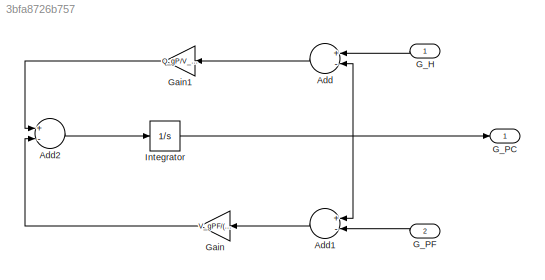
MODEL slx_3bfa8726b757
KIND model
CONFIG AbsTol = auto
CONFIG EnableMultiTasking = off
CONFIG FixedStep = auto
CONFIG MaxStep = auto
CONFIG MinStep = auto
CONFIG RelTol = 1e-3
CONFIG SampleTimeConstraint = Unconstrained
CONFIG Solver = VariableStepAuto
CONFIG SolverName = VariableStepAuto
CONFIG StartTime = 0.0
CONFIG StopTime = 10.0
BLOCK [Sum] Add
  InputSameDT = off
  Inputs = +-
  OutDataTypeStr = Inherit: Inherit via internal rule
  Ports = [2, 1]
  SaturateOnIntegerOverflow = off
BLOCK [Sum] Add1
  InputSameDT = off
  Inputs = +-
  OutDataTypeStr = Inherit: Inherit via internal rule
  Ports = [2, 1]
  SaturateOnIntegerOverflow = off
BLOCK [Sum] Add2
  InputSameDT = off
  Inputs = +-
  OutDataTypeStr = Inherit: Inherit via internal rule
  Ports = [2, 1]
  SaturateOnIntegerOverflow = off
BLOCK [Inport] G_H
  IconDisplay = Port number
BLOCK [Outport] G_PC
  IconDisplay = Port number
BLOCK [Inport] G_PF
  IconDisplay = Port number
  Port = 2
BLOCK [Gain] Gain
  Gain = V_gPF/(T_gP*V_gPC)
  OutDataTypeStr = Inherit: Inherit via internal rule
  ParamDataTypeStr = Inherit: Inherit via internal rule
  SaturateOnIntegerOverflow = off
BLOCK [Gain] Gain1
  Gain = Q_gP/V_gPC
  OutDataTypeStr = Inherit: Inherit via internal rule
  ParamDataTypeStr = Inherit: Inherit via internal rule
  SaturateOnIntegerOverflow = off
BLOCK [Integrator] Integrator
  InitialCondition = GPC_B
  LimitOutput = on
  LowerSaturationLimit = 0
  Ports = [1, 1]
LINE Add1:1 -> Gain:1
LINE Add2:1 -> Integrator:1
LINE Add:1 -> Gain1:1
LINE G_H:1 -> Add:1
LINE G_PF:1 -> Add1:2
LINE Gain1:1 -> Add2:1
LINE Gain:1 -> Add2:2
NET Integrator:1 -> Add1:1, Add:2, G_PC:1
note: NET lines group one-source signal fan-out (src -> all destinations, sorted); 1:1 wires keep LINE
